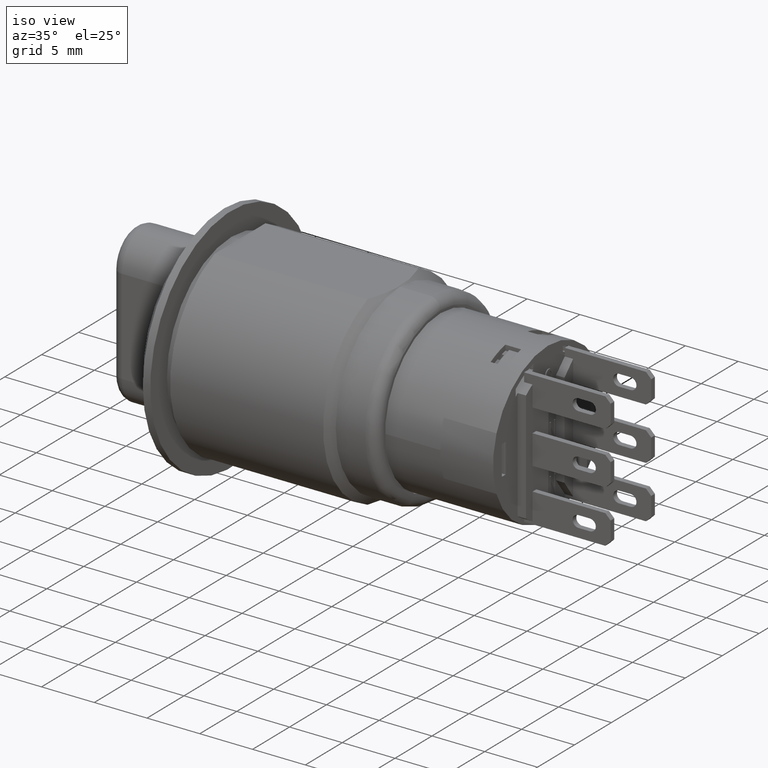
[diagram: clean part render]
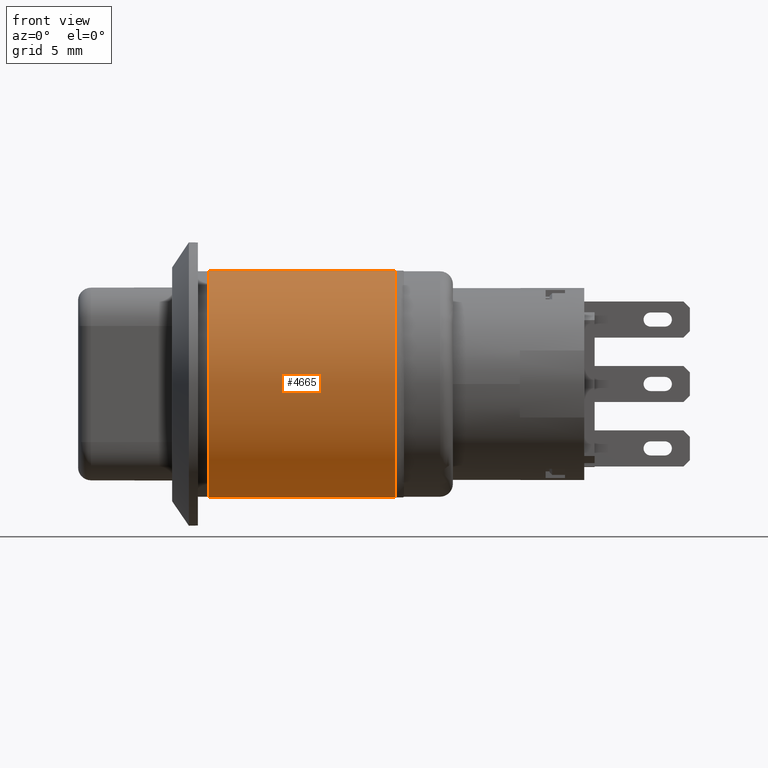
[diagram: tour spotlight — one face highlighted and labeled with its STEP entity id]
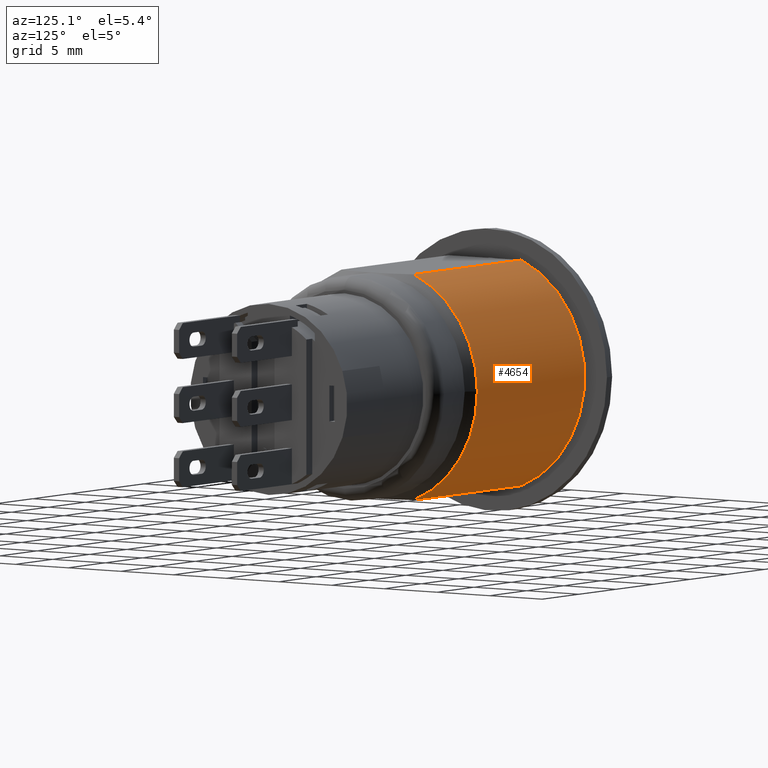
[diagram: tour spotlight — one face highlighted and labeled with its STEP entity id]
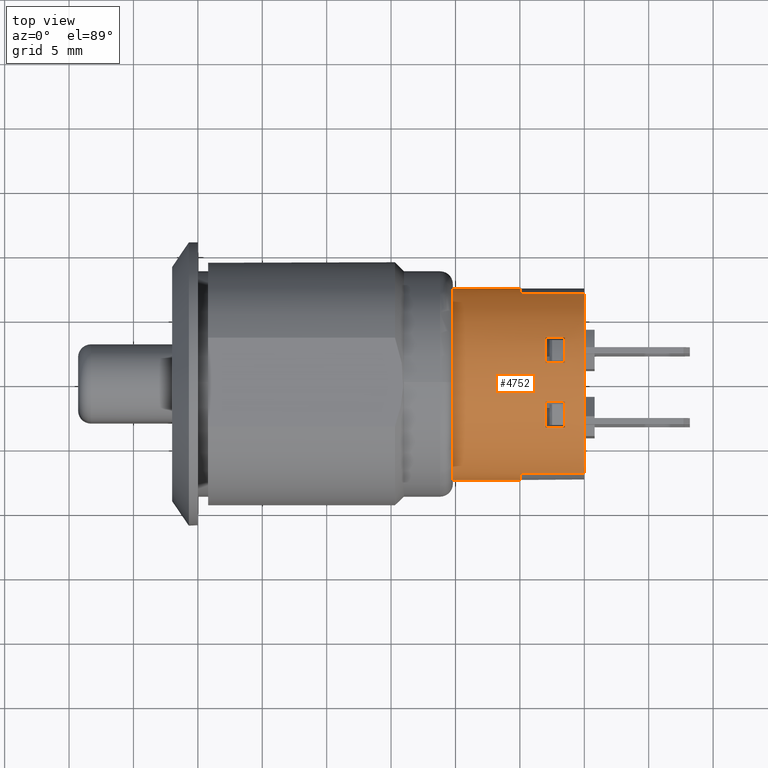
[diagram: tour spotlight — one face highlighted and labeled with its STEP entity id]
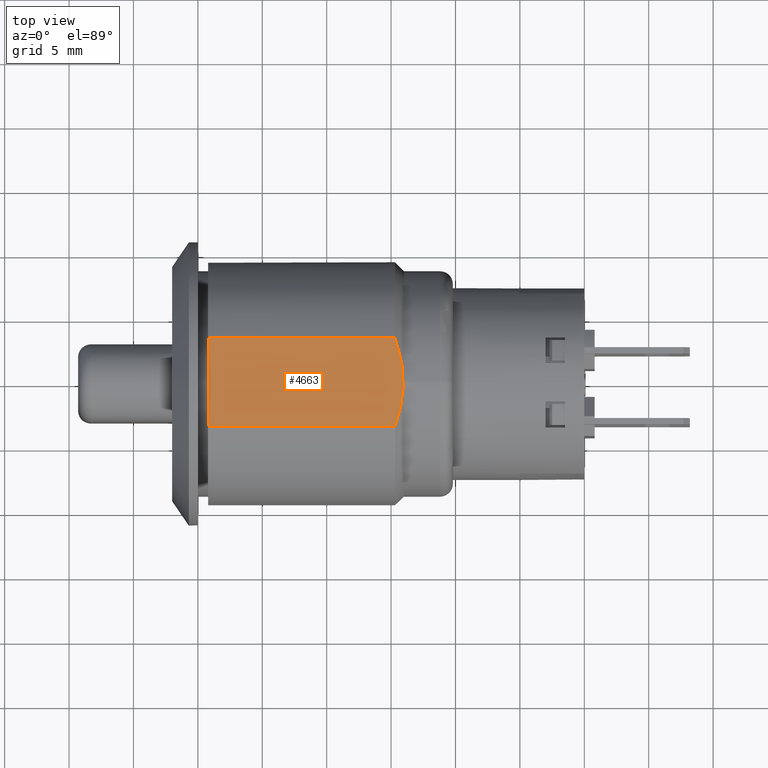
[diagram: tour spotlight — one face highlighted and labeled with its STEP entity id]
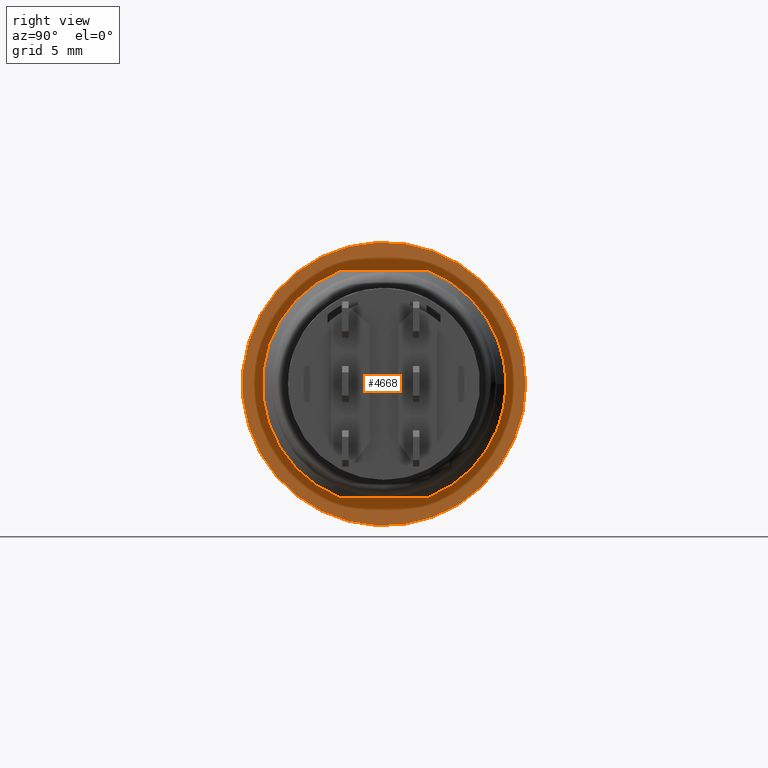
[diagram: tour spotlight — one face highlighted and labeled with its STEP entity id]
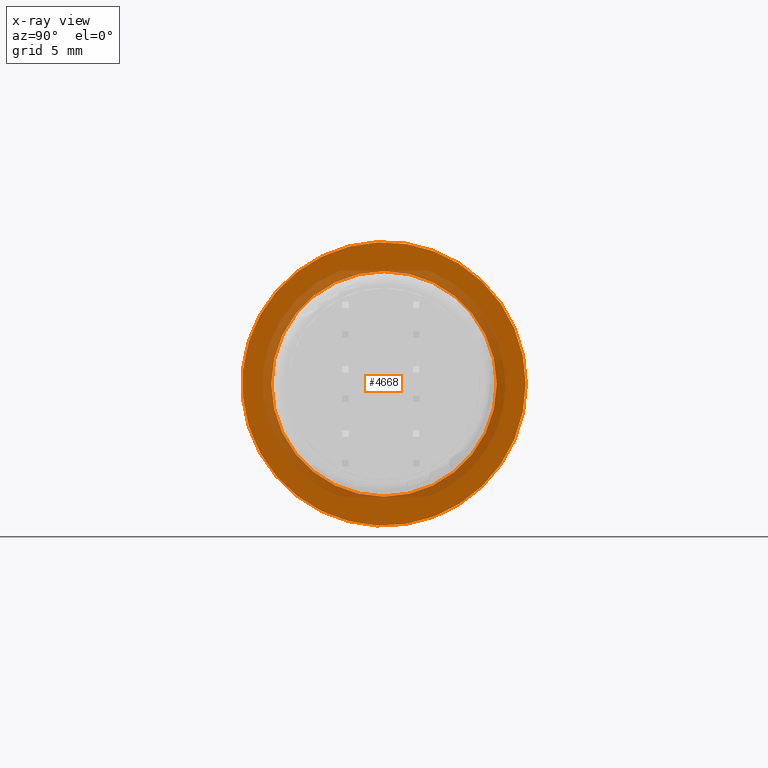
[diagram: x-ray of the same camera — body ghosted, this tour face saturated]
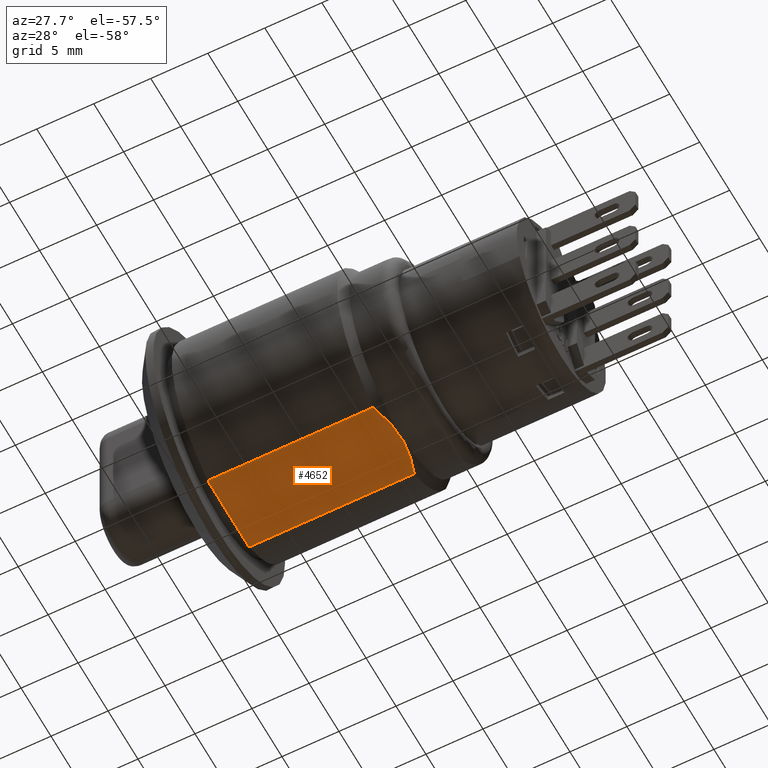
[diagram: tour spotlight — one face highlighted and labeled with its STEP entity id]
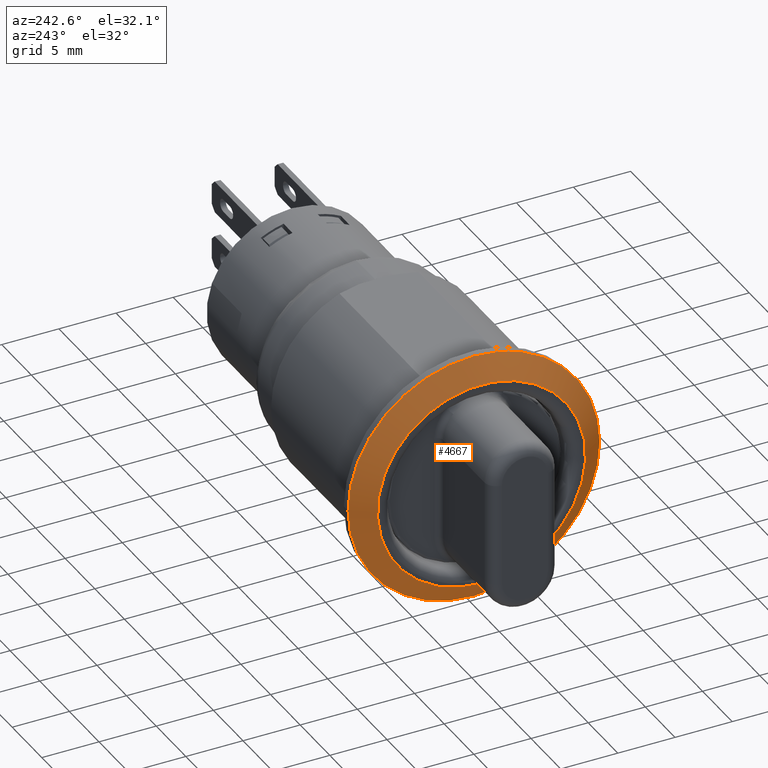
[diagram: tour spotlight — one face highlighted and labeled with its STEP entity id]
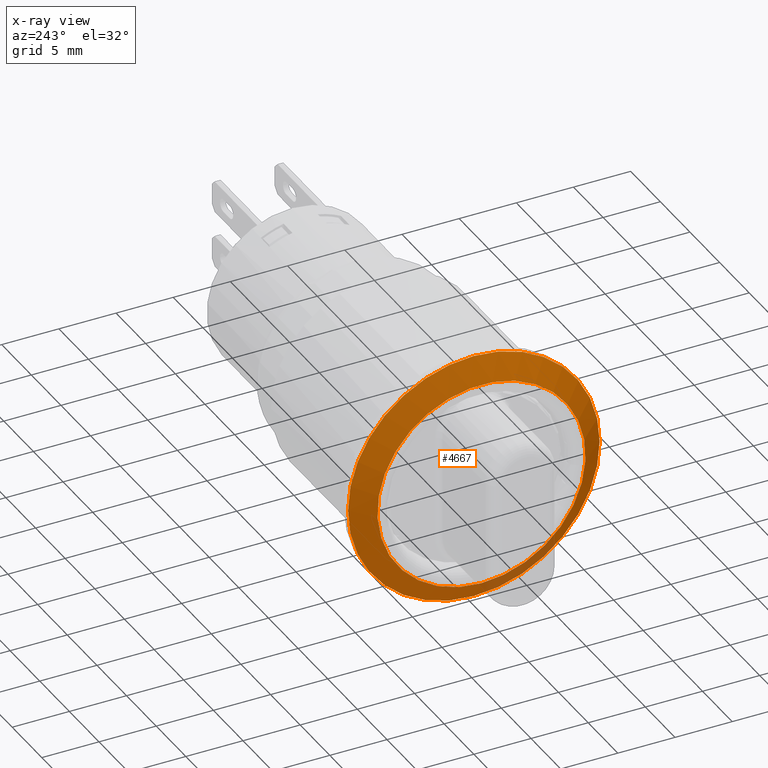
[diagram: x-ray of the same camera — body ghosted, this tour face saturated]
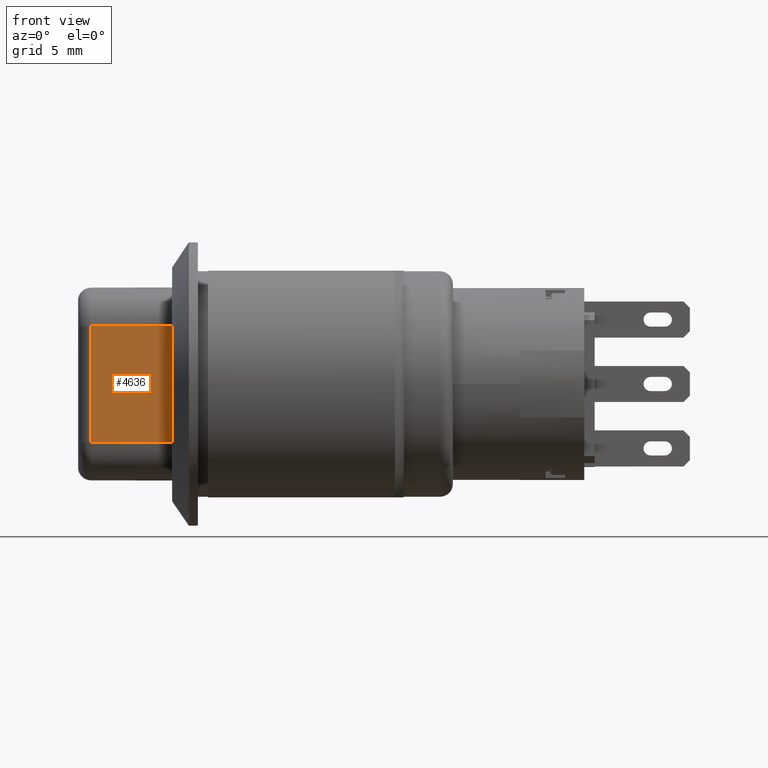
[diagram: tour spotlight — one face highlighted and labeled with its STEP entity id]
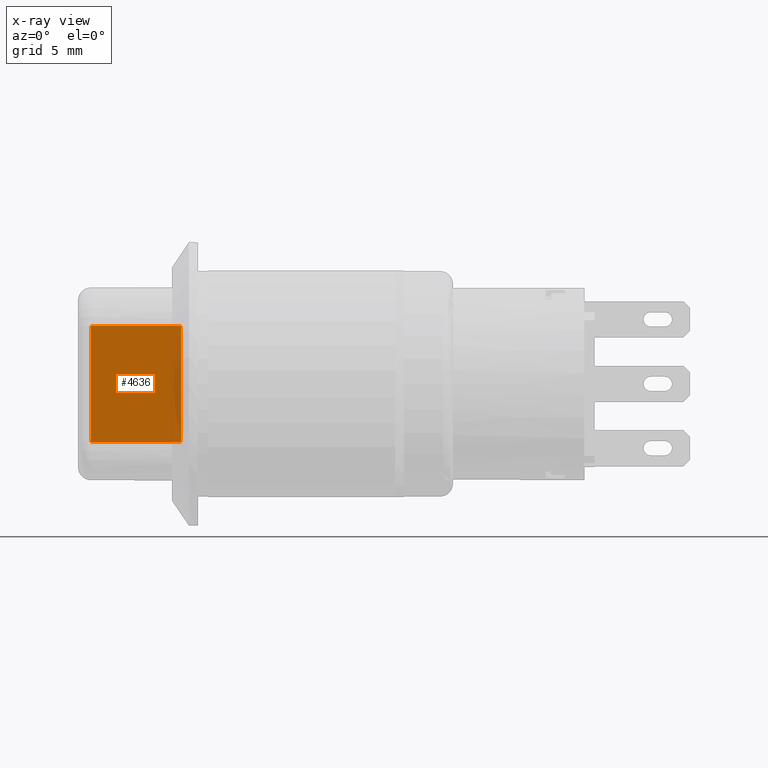
[diagram: x-ray of the same camera — body ghosted, this tour face saturated]
A machine part: a face-by-face anatomy tour. The part has 258 B-rep faces; the first image is the clean iso view, then the 8 largest visible faces are spotlighted one at a time (largest first), each with its STEP entity span.

Face 1 — front view, entity #4665. In plain terms, the highlighted cylindrical surface (partial cylindrical patch) has radius 9.45 mm, axis along (1, 0, 0).
Definition (entity closure, byte-faithful):
#108=CYLINDRICAL_SURFACE('',#4993,0.372047244094488);
#176=CIRCLE('',#4967,0.372047244094488);
#178=CIRCLE('',#4971,0.372047244094488);
#416=FACE_OUTER_BOUND('',#680,.T.);
#680=EDGE_LOOP('',(#3215,#3216,#3217,#3218));
#947=LINE('',#6813,#1417);
#956=LINE('',#6871,#1426);
#1417=VECTOR('',#5439,0.393700787401575);
#1426=VECTOR('',#5506,0.393700787401575);
#1904=VERTEX_POINT('',#6807);
#1906=VERTEX_POINT('',#6812);
#1912=VERTEX_POINT('',#6827);
#1914=VERTEX_POINT('',#6837);
#2393=EDGE_CURVE('',#1906,#1904,#947,.T.);
#2402=EDGE_CURVE('',#1912,#1904,#176,.T.);
#2405=EDGE_CURVE('',#1914,#1906,#178,.T.);
#2421=EDGE_CURVE('',#1912,#1914,#956,.T.);
#3215=ORIENTED_EDGE('',*,*,#2393,.T.);
#3216=ORIENTED_EDGE('',*,*,#2402,.F.);
#3217=ORIENTED_EDGE('',*,*,#2421,.T.);
#3218=ORIENTED_EDGE('',*,*,#2405,.T.);
#4665=ADVANCED_FACE('',(#416),#108,.T.);
#4967=AXIS2_PLACEMENT_3D('',#6831,#5453,#5454);
#4971=AXIS2_PLACEMENT_3D('',#6838,#5462,#5463);
#4993=AXIS2_PLACEMENT_3D('',#6876,#5512,#5513);
#5439=DIRECTION('',(1.,0.,0.));
#5453=DIRECTION('center_axis',(1.,0.,-7.37230385094371E-16));
#5454=DIRECTION('ref_axis',(0.,-1.,0.));
#5462=DIRECTION('center_axis',(1.,0.,-7.37230385094371E-16));
#5463=DIRECTION('ref_axis',(0.,-1.,0.));
#5506=DIRECTION('',(-1.,0.,0.));
#5512=DIRECTION('center_axis',(1.,0.,0.));
#5513=DIRECTION('ref_axis',(0.,-1.,0.));
#6807=CARTESIAN_POINT('',(0.602362204724408,-0.135598347238539,-0.346456692913386));
#6812=CARTESIAN_POINT('',(0.031496062992126,-0.135598347238539,-0.346456692913386));
#6813=CARTESIAN_POINT('',(0.,-0.135598347238539,-0.346456692913386));
#6827=CARTESIAN_POINT('',(0.602362204724409,-0.135598347238539,0.346456692913386));
#6831=CARTESIAN_POINT('Origin',(0.602362204724409,0.,0.));
#6837=CARTESIAN_POINT('',(0.0314960629921265,-0.135598347238539,0.346456692913386));
#6838=CARTESIAN_POINT('Origin',(0.031496062992126,0.,0.));
#6871=CARTESIAN_POINT('',(0.,-0.135598347238539,0.346456692913386));
#6876=CARTESIAN_POINT('Origin',(0.,0.,0.));

Face 2 — auxiliary view, entity #4654. In plain terms, the highlighted cylindrical surface (partial cylindrical patch) has radius 9.45 mm, axis along (1, 0, 0).
Definition (entity closure, byte-faithful):
#103=CYLINDRICAL_SURFACE('',#4968,0.372047244094488);
#172=CIRCLE('',#4963,0.372047244094488);
#175=CIRCLE('',#4966,0.372047244094488);
#177=CIRCLE('',#4969,0.372047244094488);
#405=FACE_OUTER_BOUND('',#666,.T.);
#666=EDGE_LOOP('',(#3170,#3171,#3172,#3173,#3174));
#949=LINE('',#6816,#1419);
#951=LINE('',#6835,#1421);
#1419=VECTOR('',#5441,0.393700787401575);
#1421=VECTOR('',#5459,0.393700787401575);
#1905=VERTEX_POINT('',#6808);
#1907=VERTEX_POINT('',#6814);
#1908=VERTEX_POINT('',#6818);
#1911=VERTEX_POINT('',#6825);
#1913=VERTEX_POINT('',#6833);
#2395=EDGE_CURVE('',#1905,#1907,#949,.T.);
#2396=EDGE_CURVE('',#1905,#1908,#172,.T.);
#2400=EDGE_CURVE('',#1908,#1911,#175,.T.);
#2403=EDGE_CURVE('',#1907,#1913,#177,.T.);
#2404=EDGE_CURVE('',#1913,#1911,#951,.T.);
#3170=ORIENTED_EDGE('',*,*,#2395,.T.);
#3171=ORIENTED_EDGE('',*,*,#2403,.T.);
#3172=ORIENTED_EDGE('',*,*,#2404,.T.);
#3173=ORIENTED_EDGE('',*,*,#2400,.F.);
#3174=ORIENTED_EDGE('',*,*,#2396,.F.);
#4654=ADVANCED_FACE('',(#405),#103,.T.);
#4963=AXIS2_PLACEMENT_3D('',#6819,#5444,#5445);
#4966=AXIS2_PLACEMENT_3D('',#6826,#5451,#5452);
#4968=AXIS2_PLACEMENT_3D('',#6832,#5455,#5456);
#4969=AXIS2_PLACEMENT_3D('',#6834,#5457,#5458);
#5441=DIRECTION('',(-1.,0.,0.));
#5444=DIRECTION('center_axis',(1.,0.,-7.37230385094371E-16));
#5445=DIRECTION('ref_axis',(0.,-1.,0.));
#5451=DIRECTION('center_axis',(1.,0.,-7.37230385094371E-16));
#5452=DIRECTION('ref_axis',(0.,-1.,0.));
#5455=DIRECTION('center_axis',(1.,0.,0.));
#5456=DIRECTION('ref_axis',(0.,1.,-1.22464679914735E-16));
#5457=DIRECTION('center_axis',(1.,0.,-7.37230385094371E-16));
#5458=DIRECTION('ref_axis',(0.,-1.,0.));
#5459=DIRECTION('',(1.,0.,0.));
#6808=CARTESIAN_POINT('',(0.602362204724408,0.135598347238539,-0.346456692913386));
#6814=CARTESIAN_POINT('',(0.031496062992126,0.135598347238539,-0.346456692913386));
#6816=CARTESIAN_POINT('',(0.,0.135598347238539,-0.346456692913386));
#6818=CARTESIAN_POINT('',(0.602362204724409,0.372047244094488,-4.55626466611909E-17));
#6819=CARTESIAN_POINT('Origin',(0.602362204724409,0.,0.));
#6825=CARTESIAN_POINT('',(0.602362204724409,0.135598347238539,0.346456692913386));
#6826=CARTESIAN_POINT('Origin',(0.602362204724409,0.,0.));
#6832=CARTESIAN_POINT('Origin',(0.,0.,0.));
#6833=CARTESIAN_POINT('',(0.0314960629921265,0.135598347238539,0.346456692913386));
#6834=CARTESIAN_POINT('Origin',(0.031496062992126,0.,0.));
#6835=CARTESIAN_POINT('',(0.,0.135598347238539,0.346456692913386));

Face 3 — top view, entity #4752. In plain terms, the highlighted cylindrical surface (bore or boss wall) has radius 7.45 mm, axis along (1, -0, -0).
Definition (entity closure, byte-faithful):
#55=FACE_BOUND('',#784,.T.);
#56=FACE_BOUND('',#785,.T.);
#57=FACE_BOUND('',#786,.T.);
#58=FACE_BOUND('',#787,.T.);
#122=CYLINDRICAL_SURFACE('',#5162,0.293307086614173);
#171=CIRCLE('',#4960,0.293307086614173);
#226=CIRCLE('',#5092,0.293307086614173);
#230=CIRCLE('',#5097,0.293307086614173);
#233=CIRCLE('',#5101,0.293307086614173);
#237=CIRCLE('',#5107,0.293307086614173);
#241=CIRCLE('',#5112,0.293307086614173);
#261=CIRCLE('',#5136,0.293307086614173);
#263=CIRCLE('',#5139,0.293307086614173);
#264=CIRCLE('',#5144,0.293307086614173);
#267=CIRCLE('',#5149,0.293307086614173);
#271=CIRCLE('',#5160,0.293307086614173);
#273=CIRCLE('',#5163,0.293307086614173);
#274=CIRCLE('',#5164,0.293307086614173);
#275=CIRCLE('',#5165,0.293307086614173);
#503=FACE_OUTER_BOUND('',#783,.T.);
#783=EDGE_LOOP('',(#3758,#3759,#3760,#3761,#3762,#3763,#3764,#3765,#3766,
#3767,#3768,#3769));
#784=EDGE_LOOP('',(#3770,#3771,#3772,#3773));
#785=EDGE_LOOP('',(#3774,#3775,#3776,#3777));
#786=EDGE_LOOP('',(#3778,#3779,#3780,#3781));
#787=EDGE_LOOP('',(#3782,#3783,#3784,#3785));
#1155=LINE('',#7483,#1625);
#1177=LINE('',#7581,#1647);
#1181=LINE('',#7588,#1651);
#1183=LINE('',#7591,#1653);
#1187=LINE('',#7603,#1657);
#1191=LINE('',#7614,#1661);
#1192=LINE('',#7616,#1662);
#1194=LINE('',#7619,#1664);
#1203=LINE('',#7646,#1673);
#1204=LINE('',#7648,#1674);
#1205=LINE('',#7651,#1675);
#1206=LINE('',#7654,#1676);
#1207=LINE('',#7656,#1677);
#1625=VECTOR('',#5933,0.393700787401575);
#1647=VECTOR('',#6027,0.393700787401575);
#1651=VECTOR('',#6033,0.393700787401575);
#1653=VECTOR('',#6037,0.393700787401575);
#1657=VECTOR('',#6051,0.393700787401575);
#1661=VECTOR('',#6063,0.393700787401575);
#1662=VECTOR('',#6066,0.393700787401575);
#1664=VECTOR('',#6070,0.393700787401575);
#1673=VECTOR('',#6097,0.393700787401575);
#1674=VECTOR('',#6098,0.393700787401575);
#1675=VECTOR('',#6101,0.293307086614173);
#1676=VECTOR('',#6104,0.393700787401575);
#1677=VECTOR('',#6105,0.393700787401575);
#1903=VERTEX_POINT('',#6804);
#2111=VERTEX_POINT('',#7437);
#2112=VERTEX_POINT('',#7439);
#2119=VERTEX_POINT('',#7454);
#2120=VERTEX_POINT('',#7456);
#2125=VERTEX_POINT('',#7467);
#2126=VERTEX_POINT('',#7469);
#2131=VERTEX_POINT('',#7481);
#2133=VERTEX_POINT('',#7487);
#2138=VERTEX_POINT('',#7499);
#2139=VERTEX_POINT('',#7501);
#2165=VERTEX_POINT('',#7565);
#2166=VERTEX_POINT('',#7567);
#2169=VERTEX_POINT('',#7574);
#2170=VERTEX_POINT('',#7576);
#2171=VERTEX_POINT('',#7580);
#2173=VERTEX_POINT('',#7586);
#2177=VERTEX_POINT('',#7605);
#2178=VERTEX_POINT('',#7607);
#2185=VERTEX_POINT('',#7637);
#2186=VERTEX_POINT('',#7639);
#2188=VERTEX_POINT('',#7645);
#2189=VERTEX_POINT('',#7647);
#2190=VERTEX_POINT('',#7649);
#2191=VERTEX_POINT('',#7652);
#2192=VERTEX_POINT('',#7655);
#2391=EDGE_CURVE('',#1903,#1903,#171,.T.);
#2667=EDGE_CURVE('',#2112,#2111,#226,.T.);
#2675=EDGE_CURVE('',#2120,#2119,#230,.T.);
#2681=EDGE_CURVE('',#2126,#2125,#233,.T.);
#2688=EDGE_CURVE('',#2111,#2131,#1155,.T.);
#2691=EDGE_CURVE('',#2131,#2133,#237,.T.);
#2697=EDGE_CURVE('',#2139,#2138,#241,.T.);
#2732=EDGE_CURVE('',#2166,#2165,#261,.T.);
#2736=EDGE_CURVE('',#2170,#2169,#263,.T.);
#2738=EDGE_CURVE('',#2171,#2166,#1177,.T.);
#2742=EDGE_CURVE('',#2165,#2173,#1181,.T.);
#2744=EDGE_CURVE('',#2125,#2170,#1183,.T.);
#2746=EDGE_CURVE('',#2173,#2171,#264,.T.);
#2751=EDGE_CURVE('',#2169,#2126,#1187,.T.);
#2753=EDGE_CURVE('',#2178,#2177,#267,.T.);
#2757=EDGE_CURVE('',#2119,#2178,#1191,.T.);
#2758=EDGE_CURVE('',#2177,#2120,#1192,.T.);
#2760=EDGE_CURVE('',#2133,#2112,#1194,.T.);
#2770=EDGE_CURVE('',#2186,#2185,#271,.T.);
#2773=EDGE_CURVE('',#2188,#2139,#1203,.T.);
#2774=EDGE_CURVE('',#2189,#2138,#1204,.T.);
#2775=EDGE_CURVE('',#2190,#2189,#273,.T.);
#2776=EDGE_CURVE('',#2190,#1903,#1205,.T.);
#2777=EDGE_CURVE('',#2191,#2190,#274,.T.);
#2778=EDGE_CURVE('',#2191,#2186,#1206,.T.);
#2779=EDGE_CURVE('',#2192,#2185,#1207,.T.);
#2780=EDGE_CURVE('',#2188,#2192,#275,.T.);
#3758=ORIENTED_EDGE('',*,*,#2773,.T.);
#3759=ORIENTED_EDGE('',*,*,#2697,.T.);
#3760=ORIENTED_EDGE('',*,*,#2774,.F.);
#3761=ORIENTED_EDGE('',*,*,#2775,.F.);
#3762=ORIENTED_EDGE('',*,*,#2776,.T.);
#3763=ORIENTED_EDGE('',*,*,#2391,.F.);
#3764=ORIENTED_EDGE('',*,*,#2776,.F.);
#3765=ORIENTED_EDGE('',*,*,#2777,.F.);
#3766=ORIENTED_EDGE('',*,*,#2778,.T.);
#3767=ORIENTED_EDGE('',*,*,#2770,.T.);
#3768=ORIENTED_EDGE('',*,*,#2779,.F.);
#3769=ORIENTED_EDGE('',*,*,#2780,.F.);
#3770=ORIENTED_EDGE('',*,*,#2681,.T.);
#3771=ORIENTED_EDGE('',*,*,#2744,.T.);
#3772=ORIENTED_EDGE('',*,*,#2736,.T.);
#3773=ORIENTED_EDGE('',*,*,#2751,.T.);
#3774=ORIENTED_EDGE('',*,*,#2746,.T.);
#3775=ORIENTED_EDGE('',*,*,#2738,.T.);
#3776=ORIENTED_EDGE('',*,*,#2732,.T.);
#3777=ORIENTED_EDGE('',*,*,#2742,.T.);
#3778=ORIENTED_EDGE('',*,*,#2667,.T.);
#3779=ORIENTED_EDGE('',*,*,#2688,.T.);
#3780=ORIENTED_EDGE('',*,*,#2691,.T.);
#3781=ORIENTED_EDGE('',*,*,#2760,.T.);
#3782=ORIENTED_EDGE('',*,*,#2675,.T.);
#3783=ORIENTED_EDGE('',*,*,#2757,.T.);
#3784=ORIENTED_EDGE('',*,*,#2753,.T.);
#3785=ORIENTED_EDGE('',*,*,#2758,.T.);
#4752=ADVANCED_FACE('',(#503,#55,#56,#57,#58),#122,.T.);
#4960=AXIS2_PLACEMENT_3D('',#6805,#5435,#5436);
#5092=AXIS2_PLACEMENT_3D('',#7440,#5896,#5897);
#5097=AXIS2_PLACEMENT_3D('',#7457,#5910,#5911);
#5101=AXIS2_PLACEMENT_3D('',#7470,#5921,#5922);
#5107=AXIS2_PLACEMENT_3D('',#7489,#5939,#5940);
#5112=AXIS2_PLACEMENT_3D('',#7502,#5951,#5952);
#5136=AXIS2_PLACEMENT_3D('',#7568,#6014,#6015);
#5139=AXIS2_PLACEMENT_3D('',#7577,#6022,#6023);
#5144=AXIS2_PLACEMENT_3D('',#7595,#6041,#6042);
#5149=AXIS2_PLACEMENT_3D('',#7608,#6055,#6056);
#5160=AXIS2_PLACEMENT_3D('',#7640,#6090,#6091);
#5162=AXIS2_PLACEMENT_3D('',#7644,#6095,#6096);
#5163=AXIS2_PLACEMENT_3D('',#7650,#6099,#6100);
#5164=AXIS2_PLACEMENT_3D('',#7653,#6102,#6103);
#5165=AXIS2_PLACEMENT_3D('',#7657,#6106,#6107);
#5435=DIRECTION('center_axis',(-1.,1.14178115324524E-15,6.20952803217501E-16));
#5436=DIRECTION('ref_axis',(1.14178115324524E-15,1.,3.65519617299427E-15));
#5896=DIRECTION('center_axis',(1.,-1.69689266555782E-15,-6.20952803217503E-16));
#5897=DIRECTION('ref_axis',(1.14178115324524E-15,1.,3.65519617299427E-15));
#5910=DIRECTION('center_axis',(1.,-1.69689266555782E-15,-6.20952803217503E-16));
#5911=DIRECTION('ref_axis',(1.14178115324524E-15,1.,3.65519617299427E-15));
#5921=DIRECTION('center_axis',(1.,-1.69689266555782E-15,-6.20952803217503E-16));
#5922=DIRECTION('ref_axis',(1.14178115324524E-15,1.,3.65519617299427E-15));
#5933=DIRECTION('',(-1.,1.14178115324524E-15,6.20952803217501E-16));
#5939=DIRECTION('center_axis',(-1.,1.14178115324524E-15,6.20952803217501E-16));
#5940=DIRECTION('ref_axis',(1.14178115324524E-15,1.,3.65519617299427E-15));
#5951=DIRECTION('center_axis',(-1.,1.14178115324524E-15,6.20952803217501E-16));
#5952=DIRECTION('ref_axis',(-6.20952803217497E-16,3.65519617299427E-15,
-1.));
#6014=DIRECTION('center_axis',(-1.,1.14178115324524E-15,6.20952803217501E-16));
#6015=DIRECTION('ref_axis',(1.14178115324524E-15,1.,3.65519617299427E-15));
#6022=DIRECTION('center_axis',(-1.,1.14178115324524E-15,6.20952803217501E-16));
#6023=DIRECTION('ref_axis',(1.14178115324524E-15,1.,3.65519617299427E-15));
#6027=DIRECTION('',(-1.,1.14178115324524E-15,6.20952803217501E-16));
#6033=DIRECTION('',(1.,-1.14178115324524E-15,-6.20952803217501E-16));
#6037=DIRECTION('',(-1.,1.14178115324524E-15,6.20952803217501E-16));
#6041=DIRECTION('center_axis',(1.,-1.69689266555782E-15,-6.20952803217503E-16));
#6042=DIRECTION('ref_axis',(1.14178115324524E-15,1.,3.65519617299427E-15));
#6051=DIRECTION('',(1.,-1.14178115324524E-15,-6.20952803217501E-16));
#6055=DIRECTION('center_axis',(-1.,1.14178115324524E-15,6.20952803217501E-16));
#6056=DIRECTION('ref_axis',(1.14178115324524E-15,1.,3.65519617299427E-15));
#6063=DIRECTION('',(-1.,1.14178115324524E-15,6.20952803217501E-16));
#6066=DIRECTION('',(1.,-1.14178115324524E-15,-6.20952803217501E-16));
#6070=DIRECTION('',(1.,-1.14178115324524E-15,-6.20952803217501E-16));
#6090=DIRECTION('center_axis',(-1.,1.14178115324524E-15,6.20952803217501E-16));
#6091=DIRECTION('ref_axis',(-6.20952803217497E-16,3.65519617299427E-15,
-1.));
#6095=DIRECTION('center_axis',(1.,-1.14178115324524E-15,-6.20952803217501E-16));
#6096=DIRECTION('ref_axis',(1.14178115324524E-15,1.,3.65519617299427E-15));
#6097=DIRECTION('',(1.,-4.68421939370568E-15,1.11022302462302E-16));
#6098=DIRECTION('',(1.,-4.68421939370568E-15,1.11022302462302E-16));
#6099=DIRECTION('center_axis',(1.,-4.68421939370568E-15,1.11022302462302E-16));
#6100=DIRECTION('ref_axis',(-4.42844618468967E-15,-0.937125223499355,0.348993288590604));
#6101=DIRECTION('',(-1.,1.14178115324524E-15,6.20952803217501E-16));
#6102=DIRECTION('center_axis',(1.,-4.68421939370568E-15,1.11022302462302E-16));
#6103=DIRECTION('ref_axis',(-4.42844618468967E-15,-0.937125223499355,0.348993288590604));
#6104=DIRECTION('',(1.,-4.68421939370568E-15,1.11022302462302E-16));
#6105=DIRECTION('',(1.,-4.68421939370568E-15,1.11022302462302E-16));
#6106=DIRECTION('center_axis',(1.,-4.68421939370568E-15,1.11022302462302E-16));
#6107=DIRECTION('ref_axis',(4.42844618468967E-15,0.937125223499355,-0.348993288590604));
#6804=CARTESIAN_POINT('',(0.763779527559055,-0.293307086614173,-1.58228573766109E-15));
#6805=CARTESIAN_POINT('Origin',(0.763779527559055,-8.47965617233383E-17,
-4.74271038677931E-16));
#7437=CARTESIAN_POINT('',(1.12204724409449,0.137795275590552,-0.258923751484908));
#7439=CARTESIAN_POINT('',(1.12204724409449,0.0590551181102368,-0.287300435229535));
#7440=CARTESIAN_POINT('Origin',(1.12204724409449,-4.93859888279704E-16,
-6.96738381562941E-16));
#7454=CARTESIAN_POINT('',(1.12204724409449,0.0590551181102347,0.287300435229534));
#7456=CARTESIAN_POINT('',(1.12204724409449,0.13779527559055,0.258923751484907));
#7457=CARTESIAN_POINT('Origin',(1.12204724409449,-4.93859888279704E-16,
-6.96738381562941E-16));
#7467=CARTESIAN_POINT('',(1.12204724409449,-0.0590551181102357,-0.287300435229536));
#7469=CARTESIAN_POINT('',(1.12204724409449,-0.137795275590551,-0.258923751484909));
#7470=CARTESIAN_POINT('Origin',(1.12204724409449,-4.93859888279704E-16,
-6.96738381562941E-16));
#7481=CARTESIAN_POINT('',(1.06299212598425,0.137795275590552,-0.258923751484908));
#7483=CARTESIAN_POINT('',(0.763779527559055,0.137795275590552,-0.258923751484907));
#7487=CARTESIAN_POINT('',(1.06299212598425,0.0590551181102368,-0.287300435229535));
#7489=CARTESIAN_POINT('Origin',(1.06299212598425,-4.26431867418764E-16,
-6.6006794042805E-16));
#7499=CARTESIAN_POINT('',(1.18110236220472,-0.274865469097253,-0.10236220472441));
#7501=CARTESIAN_POINT('',(1.18110236220472,0.27486546909725,-0.10236220472441));
#7502=CARTESIAN_POINT('Origin',(1.18110236220472,-5.61287909140643E-16,
-7.33408822697833E-16));
#7565=CARTESIAN_POINT('',(1.06299212598425,-0.0590551181102377,0.287300435229534));
#7567=CARTESIAN_POINT('',(1.06299212598425,-0.137795275590553,0.258923751484906));
#7568=CARTESIAN_POINT('Origin',(1.06299212598425,-4.26431867418764E-16,
-6.6006794042805E-16));
#7574=CARTESIAN_POINT('',(1.06299212598425,-0.137795275590551,-0.258923751484909));
#7576=CARTESIAN_POINT('',(1.06299212598425,-0.0590551181102356,-0.287300435229536));
#7577=CARTESIAN_POINT('Origin',(1.06299212598425,-4.26431867418764E-16,
-6.6006794042805E-16));
#7580=CARTESIAN_POINT('',(1.12204724409449,-0.137795275590553,0.258923751484906));
#7581=CARTESIAN_POINT('',(0.763779527559055,-0.137795275590552,0.258923751484907));
#7586=CARTESIAN_POINT('',(1.12204724409449,-0.0590551181102378,0.287300435229534));
#7588=CARTESIAN_POINT('',(0.763779527559055,-0.0590551181102373,0.287300435229534));
#7591=CARTESIAN_POINT('',(0.763779527559055,-0.0590551181102352,-0.287300435229536));
#7595=CARTESIAN_POINT('Origin',(1.12204724409449,-4.93859888279704E-16,
-6.96738381562941E-16));
#7603=CARTESIAN_POINT('',(0.763779527559055,-0.13779527559055,-0.258923751484909));
#7605=CARTESIAN_POINT('',(1.06299212598425,0.13779527559055,0.258923751484907));
#7607=CARTESIAN_POINT('',(1.06299212598425,0.0590551181102347,0.287300435229535));
#7608=CARTESIAN_POINT('Origin',(1.06299212598425,-4.26431867418764E-16,
-6.6006794042805E-16));
#7614=CARTESIAN_POINT('',(0.763779527559055,0.0590551181102351,0.287300435229535));
#7616=CARTESIAN_POINT('',(0.763779527559055,0.13779527559055,0.258923751484908));
#7619=CARTESIAN_POINT('',(0.763779527559055,0.0590551181102372,-0.287300435229535));
#7637=CARTESIAN_POINT('',(1.18110236220472,0.27486546909725,0.102362204724409));
#7639=CARTESIAN_POINT('',(1.18110236220472,-0.274865469097253,0.102362204724409));
#7640=CARTESIAN_POINT('Origin',(1.18110236220472,-5.61287909140643E-16,
-7.33408822697833E-16));
#7644=CARTESIAN_POINT('Origin',(0.763779527559055,-8.47965617233383E-17,
-4.74271038677931E-16));
#7645=CARTESIAN_POINT('',(0.984251968503936,0.274865469097251,-0.10236220472441));
#7646=CARTESIAN_POINT('',(0.984251968503936,0.274865469097251,-0.10236220472441));
#7647=CARTESIAN_POINT('',(0.984251968503933,-0.274865469097252,-0.10236220472441));
#7648=CARTESIAN_POINT('',(0.984251968503933,-0.274865469097252,-0.10236220472441));
#7649=CARTESIAN_POINT('',(0.984251968503933,-0.293307086614174,-1.71918871789801E-15));
#7650=CARTESIAN_POINT('Origin',(0.984251968503935,-3.36527839604176E-16,
-6.11174018914859E-16));
#7651=CARTESIAN_POINT('',(0.763779527559055,-0.293307086614173,-1.58228573766109E-15));
#7652=CARTESIAN_POINT('',(0.984251968503933,-0.274865469097252,0.102362204724409));
#7653=CARTESIAN_POINT('Origin',(0.984251968503935,-3.36527839604176E-16,
-6.11174018914859E-16));
#7654=CARTESIAN_POINT('',(0.984251968503933,-0.274865469097252,0.102362204724409));
#7655=CARTESIAN_POINT('',(0.984251968503936,0.274865469097251,0.102362204724409));
#7656=CARTESIAN_POINT('',(0.984251968503936,0.274865469097251,0.102362204724409));
#7657=CARTESIAN_POINT('Origin',(0.984251968503935,-3.36527839604176E-16,
-6.11174018914859E-16));

Face 4 — top view, entity #4663. In plain terms, the highlighted planar face has unit normal (0, 0, -1).
Definition (entity closure, byte-faithful):
#22=(
BOUNDED_CURVE()
B_SPLINE_CURVE(2,(#6828,#6829,#6830),.UNSPECIFIED.,.F.,.F.)
B_SPLINE_CURVE_WITH_KNOTS((3,3),(1.94637570686143,3.44133252577323),
 .UNSPECIFIED.)
CURVE()
GEOMETRIC_REPRESENTATION_ITEM()
RATIONAL_B_SPLINE_CURVE((1.79452054794519,1.92707036114568,1.79452054794519))
REPRESENTATION_ITEM('')
);
#414=FACE_OUTER_BOUND('',#678,.T.);
#678=EDGE_LOOP('',(#3207,#3208,#3209,#3210));
#951=LINE('',#6835,#1421);
#952=LINE('',#6839,#1422);
#956=LINE('',#6871,#1426);
#1421=VECTOR('',#5459,0.393700787401575);
#1422=VECTOR('',#5464,0.393700787401575);
#1426=VECTOR('',#5506,0.393700787401575);
#1911=VERTEX_POINT('',#6825);
#1912=VERTEX_POINT('',#6827);
#1913=VERTEX_POINT('',#6833);
#1914=VERTEX_POINT('',#6837);
#2401=EDGE_CURVE('',#1911,#1912,#22,.T.);
#2404=EDGE_CURVE('',#1913,#1911,#951,.T.);
#2406=EDGE_CURVE('',#1913,#1914,#952,.T.);
#2421=EDGE_CURVE('',#1912,#1914,#956,.T.);
#3207=ORIENTED_EDGE('',*,*,#2401,.F.);
#3208=ORIENTED_EDGE('',*,*,#2404,.F.);
#3209=ORIENTED_EDGE('',*,*,#2406,.T.);
#3210=ORIENTED_EDGE('',*,*,#2421,.F.);
#4470=PLANE('',#4990);
#4663=ADVANCED_FACE('',(#414),#4470,.F.);
#4990=AXIS2_PLACEMENT_3D('',#6870,#5504,#5505);
#5459=DIRECTION('',(1.,0.,0.));
#5464=DIRECTION('',(0.,-1.,0.));
#5504=DIRECTION('center_axis',(0.,0.,-1.));
#5505=DIRECTION('ref_axis',(-1.,0.,0.));
#5506=DIRECTION('',(-1.,0.,0.));
#6825=CARTESIAN_POINT('',(0.602362204724409,0.135598347238539,0.346456692913386));
#6827=CARTESIAN_POINT('',(0.602362204724409,-0.135598347238539,0.346456692913386));
#6828=CARTESIAN_POINT('Ctrl Pts',(0.602362204724409,0.135598347238539,0.346456692913386));
#6829=CARTESIAN_POINT('Ctrl Pts',(0.651783110444527,-1.44241574065473E-15,
0.346456692913386));
#6830=CARTESIAN_POINT('Ctrl Pts',(0.602362204724409,-0.135598347238539,
0.346456692913386));
#6833=CARTESIAN_POINT('',(0.0314960629921265,0.135598347238539,0.346456692913386));
#6835=CARTESIAN_POINT('',(0.,0.135598347238539,0.346456692913386));
#6837=CARTESIAN_POINT('',(0.0314960629921265,-0.135598347238539,0.346456692913386));
#6839=CARTESIAN_POINT('',(0.0314960629921265,0.0677991736192697,0.346456692913386));
#6870=CARTESIAN_POINT('Origin',(0.,0.135598347238539,0.346456692913386));
#6871=CARTESIAN_POINT('',(0.,-0.135598347238539,0.346456692913386));

Face 5 — right view, entity #4668. An x-ray twin of the same camera follows (body ghosted, this face saturated) — the face is partly hidden behind the body. In plain terms, the highlighted planar face has unit normal (-1, 0, 0).
Definition (entity closure, byte-faithful):
#39=FACE_BOUND('',#684,.T.);
#190=CIRCLE('',#4992,0.344488188976378);
#193=CIRCLE('',#4999,0.433070866141732);
#419=FACE_OUTER_BOUND('',#683,.T.);
#683=EDGE_LOOP('',(#3225));
#684=EDGE_LOOP('',(#3226));
#1924=VERTEX_POINT('',#6873);
#1927=VERTEX_POINT('',#6885);
#2422=EDGE_CURVE('',#1924,#1924,#190,.T.);
#2427=EDGE_CURVE('',#1927,#1927,#193,.T.);
#3225=ORIENTED_EDGE('',*,*,#2427,.F.);
#3226=ORIENTED_EDGE('',*,*,#2422,.F.);
#4472=PLANE('',#4998);
#4668=ADVANCED_FACE('',(#419,#39),#4472,.F.);
#4992=AXIS2_PLACEMENT_3D('',#6874,#5509,#5510);
#4998=AXIS2_PLACEMENT_3D('',#6884,#5523,#5524);
#4999=AXIS2_PLACEMENT_3D('',#6886,#5525,#5526);
#5509=DIRECTION('center_axis',(1.,0.,-7.37230385094371E-16));
#5510=DIRECTION('ref_axis',(-7.59626280006685E-16,0.,-1.));
#5523=DIRECTION('center_axis',(-1.,0.,0.));
#5524=DIRECTION('ref_axis',(0.,0.,1.));
#5525=DIRECTION('center_axis',(-1.,0.,0.));
#5526=DIRECTION('ref_axis',(0.,-1.,0.));
#6873=CARTESIAN_POINT('',(5.08123726821553E-16,-4.2187635797399E-17,0.34448839351715));
#6874=CARTESIAN_POINT('Origin',(2.53965821879749E-16,0.,2.04540772068532E-7));
#6884=CARTESIAN_POINT('Origin',(0.,0.,0.));
#6885=CARTESIAN_POINT('',(0.,0.433070866141732,5.30358850024444E-17));
#6886=CARTESIAN_POINT('Origin',(0.,0.,0.));

Face 6 — auxiliary view, entity #4652. In plain terms, the highlighted planar face has unit normal (0, 0, -1).
Definition (entity closure, byte-faithful):
#21=(
BOUNDED_CURVE()
B_SPLINE_CURVE(2,(#6809,#6810,#6811),.UNSPECIFIED.,.F.,.F.)
B_SPLINE_CURVE_WITH_KNOTS((3,3),(0.,0.700999286732874),.UNSPECIFIED.)
CURVE()
GEOMETRIC_REPRESENTATION_ITEM()
RATIONAL_B_SPLINE_CURVE((1.,1.07386363636363,1.))
REPRESENTATION_ITEM('')
);
#403=FACE_OUTER_BOUND('',#664,.T.);
#664=EDGE_LOOP('',(#3157,#3158,#3159,#3160));
#947=LINE('',#6813,#1417);
#948=LINE('',#6815,#1418);
#949=LINE('',#6816,#1419);
#1417=VECTOR('',#5439,0.393700787401575);
#1418=VECTOR('',#5440,0.393700787401575);
#1419=VECTOR('',#5441,0.393700787401575);
#1904=VERTEX_POINT('',#6807);
#1905=VERTEX_POINT('',#6808);
#1906=VERTEX_POINT('',#6812);
#1907=VERTEX_POINT('',#6814);
#2392=EDGE_CURVE('',#1904,#1905,#21,.T.);
#2393=EDGE_CURVE('',#1906,#1904,#947,.T.);
#2394=EDGE_CURVE('',#1907,#1906,#948,.T.);
#2395=EDGE_CURVE('',#1905,#1907,#949,.T.);
#3157=ORIENTED_EDGE('',*,*,#2392,.F.);
#3158=ORIENTED_EDGE('',*,*,#2393,.F.);
#3159=ORIENTED_EDGE('',*,*,#2394,.F.);
#3160=ORIENTED_EDGE('',*,*,#2395,.F.);
#4466=PLANE('',#4961);
#4652=ADVANCED_FACE('',(#403),#4466,.T.);
#4961=AXIS2_PLACEMENT_3D('',#6806,#5437,#5438);
#5437=DIRECTION('center_axis',(0.,0.,-1.));
#5438=DIRECTION('ref_axis',(-1.,0.,0.));
#5439=DIRECTION('',(1.,0.,0.));
#5440=DIRECTION('',(0.,-1.,0.));
#5441=DIRECTION('',(-1.,0.,0.));
#6806=CARTESIAN_POINT('Origin',(0.,0.135598347238539,-0.346456692913386));
#6807=CARTESIAN_POINT('',(0.602362204724408,-0.135598347238539,-0.346456692913386));
#6808=CARTESIAN_POINT('',(0.602362204724408,0.135598347238539,-0.346456692913386));
#6809=CARTESIAN_POINT('Ctrl Pts',(0.602362204724409,-0.135598347238539,
-0.346456692913386));
#6810=CARTESIAN_POINT('Ctrl Pts',(0.651783110444528,0.,-0.346456692913386));
#6811=CARTESIAN_POINT('Ctrl Pts',(0.602362204724409,0.135598347238539,-0.346456692913386));
#6812=CARTESIAN_POINT('',(0.031496062992126,-0.135598347238539,-0.346456692913386));
#6813=CARTESIAN_POINT('',(0.,-0.135598347238539,-0.346456692913386));
#6814=CARTESIAN_POINT('',(0.031496062992126,0.135598347238539,-0.346456692913386));
#6815=CARTESIAN_POINT('',(0.031496062992126,0.0677991736192697,-0.346456692913386));
#6816=CARTESIAN_POINT('',(0.,0.135598347238539,-0.346456692913386));

Face 7 — auxiliary view, entity #4667. An x-ray twin of the same camera follows (body ghosted, this face saturated) — the face is partly hidden behind the body. In plain terms, the highlighted conical surface has half-angle 55.62 deg.
Definition (entity closure, byte-faithful):
#16=CONICAL_SURFACE('',#4995,0.395669291338583,0.970746113393143);
#184=CIRCLE('',#4979,0.358267716535433);
#191=CIRCLE('',#4996,0.433070866141732);
#192=CIRCLE('',#4997,0.433070866141732);
#418=FACE_OUTER_BOUND('',#682,.T.);
#682=EDGE_LOOP('',(#3220,#3221,#3222,#3223,#3224));
#958=LINE('',#6880,#1428);
#1428=VECTOR('',#5518,0.395669291338583);
#1919=VERTEX_POINT('',#6851);
#1925=VERTEX_POINT('',#6879);
#1926=VERTEX_POINT('',#6881);
#2412=EDGE_CURVE('',#1919,#1919,#184,.T.);
#2424=EDGE_CURVE('',#1919,#1925,#958,.T.);
#2425=EDGE_CURVE('',#1926,#1925,#191,.T.);
#2426=EDGE_CURVE('',#1925,#1926,#192,.T.);
#3220=ORIENTED_EDGE('',*,*,#2412,.F.);
#3221=ORIENTED_EDGE('',*,*,#2424,.T.);
#3222=ORIENTED_EDGE('',*,*,#2425,.F.);
#3223=ORIENTED_EDGE('',*,*,#2426,.F.);
#3224=ORIENTED_EDGE('',*,*,#2424,.F.);
#4667=ADVANCED_FACE('',(#418),#16,.T.);
#4979=AXIS2_PLACEMENT_3D('',#6852,#5479,#5480);
#4995=AXIS2_PLACEMENT_3D('',#6878,#5516,#5517);
#4996=AXIS2_PLACEMENT_3D('',#6882,#5519,#5520);
#4997=AXIS2_PLACEMENT_3D('',#6883,#5521,#5522);
#5479=DIRECTION('center_axis',(-1.,0.,0.));
#5480=DIRECTION('ref_axis',(0.,0.,1.));
#5516=DIRECTION('center_axis',(1.,0.,0.));
#5517=DIRECTION('ref_axis',(0.,0.,1.));
#5518=DIRECTION('',(0.56468391559199,-1.01070989580267E-16,-0.825307261249832));
#5519=DIRECTION('center_axis',(1.,0.,0.));
#5520=DIRECTION('ref_axis',(0.,-1.,0.));
#5521=DIRECTION('center_axis',(1.,0.,0.));
#5522=DIRECTION('ref_axis',(0.,-1.,0.));
#6851=CARTESIAN_POINT('',(-0.078740157480315,-4.38751412292949E-17,-0.358267716535433));
#6852=CARTESIAN_POINT('Origin',(-0.078740157480315,0.,0.));
#6878=CARTESIAN_POINT('Origin',(-0.0531496062992126,0.,0.));
#6879=CARTESIAN_POINT('',(-0.0275590551181102,-5.30358850024444E-17,-0.433070866141732));
#6880=CARTESIAN_POINT('',(-0.0531496062992126,-4.84555131158697E-17,-0.395669291338583));
#6881=CARTESIAN_POINT('',(-0.0275590551181102,0.433070866141732,5.30358850024444E-17));
#6882=CARTESIAN_POINT('Origin',(-0.0275590551181102,0.,0.));
#6883=CARTESIAN_POINT('Origin',(-0.0275590551181102,0.,0.));

Face 8 — front view, entity #4636. An x-ray twin of the same camera follows (body ghosted, this face saturated) — the face is partly hidden behind the body. In plain terms, the highlighted planar face has unit normal (0, -1, 0).
Definition (entity closure, byte-faithful):
#387=FACE_OUTER_BOUND('',#645,.T.);
#645=EDGE_LOOP('',(#3085,#3086,#3087,#3088));
#936=LINE('',#6687,#1406);
#937=LINE('',#6752,#1407);
#938=LINE('',#6754,#1408);
#939=LINE('',#6755,#1409);
#1406=VECTOR('',#5354,0.393700787401575);
#1407=VECTOR('',#5365,0.393700787401575);
#1408=VECTOR('',#5366,0.393700787401575);
#1409=VECTOR('',#5367,0.393700787401575);
#1884=VERTEX_POINT('',#6677);
#1886=VERTEX_POINT('',#6683);
#1890=VERTEX_POINT('',#6751);
#1891=VERTEX_POINT('',#6753);
#2360=EDGE_CURVE('',#1884,#1886,#936,.T.);
#2366=EDGE_CURVE('',#1884,#1890,#937,.T.);
#2367=EDGE_CURVE('',#1891,#1890,#938,.T.);
#2368=EDGE_CURVE('',#1886,#1891,#939,.T.);
#3085=ORIENTED_EDGE('',*,*,#2360,.F.);
#3086=ORIENTED_EDGE('',*,*,#2366,.T.);
#3087=ORIENTED_EDGE('',*,*,#2367,.F.);
#3088=ORIENTED_EDGE('',*,*,#2368,.F.);
#4459=PLANE('',#4929);
#4636=ADVANCED_FACE('',(#387),#4459,.T.);
#4929=AXIS2_PLACEMENT_3D('',#6750,#5363,#5364);
#5354=DIRECTION('',(0.,-1.85037170770859E-16,-1.));
#5363=DIRECTION('center_axis',(0.,-1.,1.85037170770859E-16));
#5364=DIRECTION('ref_axis',(0.,1.85037170770859E-16,1.));
#5365=DIRECTION('',(-1.,0.,0.));
#5366=DIRECTION('',(0.,1.85037170770859E-16,1.));
#5367=DIRECTION('',(-1.,0.,0.));
#6677=CARTESIAN_POINT('',(-0.0511811023622047,-0.118110236220472,0.177165354330709));
#6683=CARTESIAN_POINT('',(-0.0511811023622047,-0.118110236220472,-0.177165354330709));
#6687=CARTESIAN_POINT('',(-0.0511811023622047,-0.118110236220472,-0.0885826771653543));
#6750=CARTESIAN_POINT('Origin',(-0.031496062992126,-0.118110236220472,-0.177165354330709));
#6751=CARTESIAN_POINT('',(-0.326771653543307,-0.118110236220472,0.177165354330709));
#6752=CARTESIAN_POINT('',(-0.031496062992126,-0.118110236220472,0.177165354330709));
#6753=CARTESIAN_POINT('',(-0.326771653543307,-0.118110236220472,-0.177165354330709));
#6754=CARTESIAN_POINT('',(-0.326771653543307,-0.118110236220472,-0.0885826771653543));
#6755=CARTESIAN_POINT('',(-0.031496062992126,-0.118110236220472,-0.177165354330709));